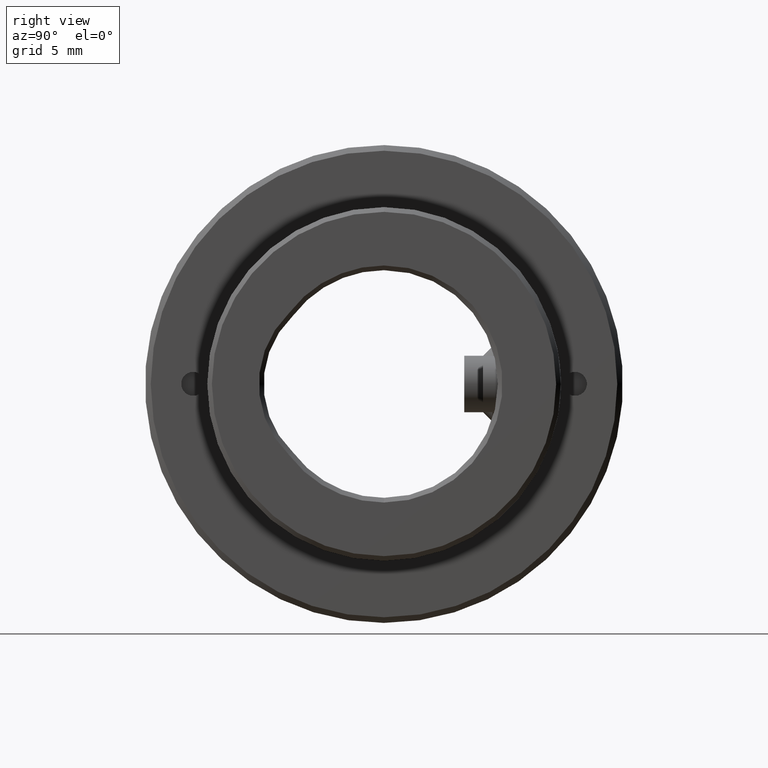
[diagram: clean part render]
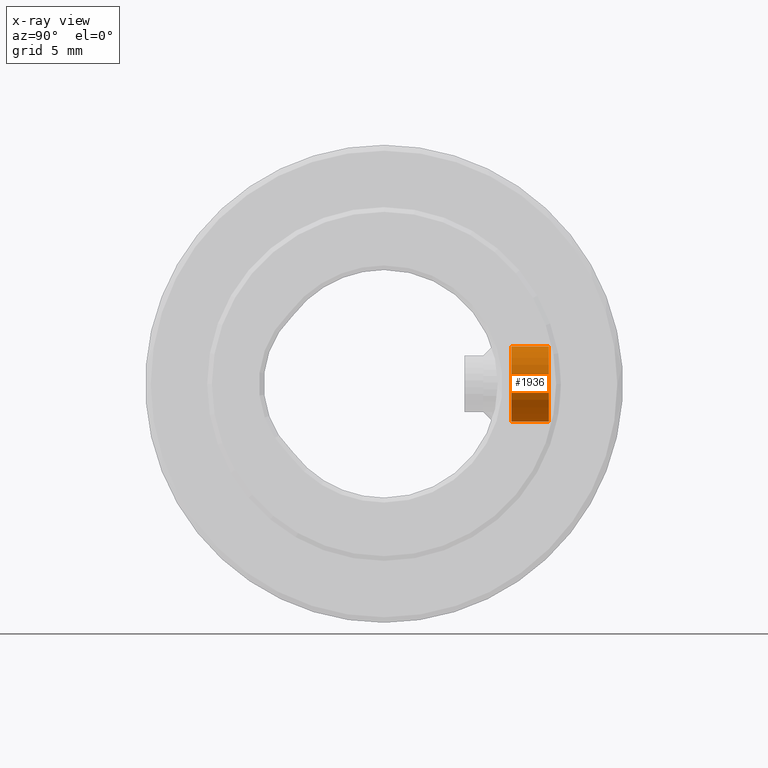
[diagram: x-ray — body ghosted, one internal face saturated and labeled with its STEP entity id]
A machine part, right view, then the same camera in x-ray: the body is ghosted and one INTERNAL B-rep face — a face not visible from any outside direction — is saturated and labeled: STEP entity #1936.
In plain terms, the highlighted cylindrical surface (partial cylindrical patch) has radius 2 mm, axis along (0, -1, -0).
Its self-contained STEP definition (entity closure, byte-faithful):
#13 = ORIENTED_EDGE ( 'NONE', *, *, #2235, .F. ) ;
#38 = VECTOR ( 'NONE', #4966, 1000.000000000000000 ) ;
#297 = CIRCLE ( 'NONE', #1039, 2.000000000000000444 ) ;
#417 = EDGE_CURVE ( 'NONE', #1604, #2325, #297, .T. ) ;
#754 = DIRECTION ( 'NONE',  ( 0.07269587211734902799, 0.000000000000000000, 0.9973541548402443668 ) ) ;
#867 = AXIS2_PLACEMENT_3D ( 'NONE', #3111, #4665, #3865 ) ;
#1017 = EDGE_CURVE ( 'NONE', #4651, #1604, #2542, .T. ) ;
#1039 = AXIS2_PLACEMENT_3D ( 'NONE', #3708, #4045, #1350 ) ;
#1169 = FACE_OUTER_BOUND ( 'NONE', #3019, .T. ) ;
#1350 = DIRECTION ( 'NONE',  ( 0.07269587211734902799, 0.000000000000000000, 0.9973541548402443668 ) ) ;
#1476 = CARTESIAN_POINT ( 'NONE',  ( 12.35460825576529764, 8.767381158747626912, -1.994708309680488734 ) ) ;
#1604 = VERTEX_POINT ( 'NONE', #2075 ) ;
#1639 = ORIENTED_EDGE ( 'NONE', *, *, #2012, .T. ) ;
#1708 = CARTESIAN_POINT ( 'NONE',  ( 12.64539174423469348, 9.267381158747626912, 1.994708309680489178 ) ) ;
#1767 = VERTEX_POINT ( 'NONE', #1476 ) ;
#1855 = VECTOR ( 'NONE', #2059, 1000.000000000000000 ) ;
#1892 = CARTESIAN_POINT ( 'NONE',  ( 12.64539174423469348, 8.767381158747626912, 1.994708309680488734 ) ) ;
#1936 = ADVANCED_FACE ( 'NONE', ( #1169 ), #3133, .T. ) ;
#2012 = EDGE_CURVE ( 'NONE', #1767, #4651, #4018, .T. ) ;
#2059 = DIRECTION ( 'NONE',  ( 5.083153145339567543E-16, -1.000000000000000000, -1.738507377522467191E-17 ) ) ;
#2075 = CARTESIAN_POINT ( 'NONE',  ( 12.64539174423469348, 6.767381158747628689, 1.994708309680488734 ) ) ;
#2235 = EDGE_CURVE ( 'NONE', #1767, #2325, #3800, .T. ) ;
#2293 = CARTESIAN_POINT ( 'NONE',  ( 12.35460825576529764, 9.267381158747626912, -1.994708309680489178 ) ) ;
#2325 = VERTEX_POINT ( 'NONE', #4212 ) ;
#2344 = ORIENTED_EDGE ( 'NONE', *, *, #1017, .T. ) ;
#2542 = LINE ( 'NONE', #1708, #1855 ) ;
#2699 = CARTESIAN_POINT ( 'NONE',  ( 12.49999999999999467, 8.767381158747626912, -3.785247849835116971E-17 ) ) ;
#3019 = EDGE_LOOP ( 'NONE', ( #1639, #2344, #3174, #13 ) ) ;
#3111 = CARTESIAN_POINT ( 'NONE',  ( 12.49999999999999467, 9.267381158747626912, -2.915994161073881373E-17 ) ) ;
#3133 = CYLINDRICAL_SURFACE ( 'NONE', #867, 2.000000000000000444 ) ;
#3174 = ORIENTED_EDGE ( 'NONE', *, *, #417, .T. ) ;
#3690 = AXIS2_PLACEMENT_3D ( 'NONE', #2699, #4250, #754 ) ;
#3708 = CARTESIAN_POINT ( 'NONE',  ( 12.49999999999999645, 6.767381158747628689, -7.262262604880048889E-17 ) ) ;
#3800 = LINE ( 'NONE', #2293, #38 ) ;
#3865 = DIRECTION ( 'NONE',  ( -0.07269587211734902799, 0.000000000000000000, -0.9973541548402443668 ) ) ;
#4018 = CIRCLE ( 'NONE', #3690, 2.000000000000000444 ) ;
#4045 = DIRECTION ( 'NONE',  ( -5.083153145339567543E-16, 1.000000000000000000, 1.738507377522467191E-17 ) ) ;
#4212 = CARTESIAN_POINT ( 'NONE',  ( 12.35460825576529764, 6.767381158747628689, -1.994708309680488734 ) ) ;
#4250 = DIRECTION ( 'NONE',  ( 5.083153145339567543E-16, -1.000000000000000000, -1.738507377522467191E-17 ) ) ;
#4651 = VERTEX_POINT ( 'NONE', #1892 ) ;
#4665 = DIRECTION ( 'NONE',  ( 5.083153145339567543E-16, -1.000000000000000000, -1.738507377522467191E-17 ) ) ;
#4966 = DIRECTION ( 'NONE',  ( 5.083153145339567543E-16, -1.000000000000000000, -1.738507377522467191E-17 ) ) ;